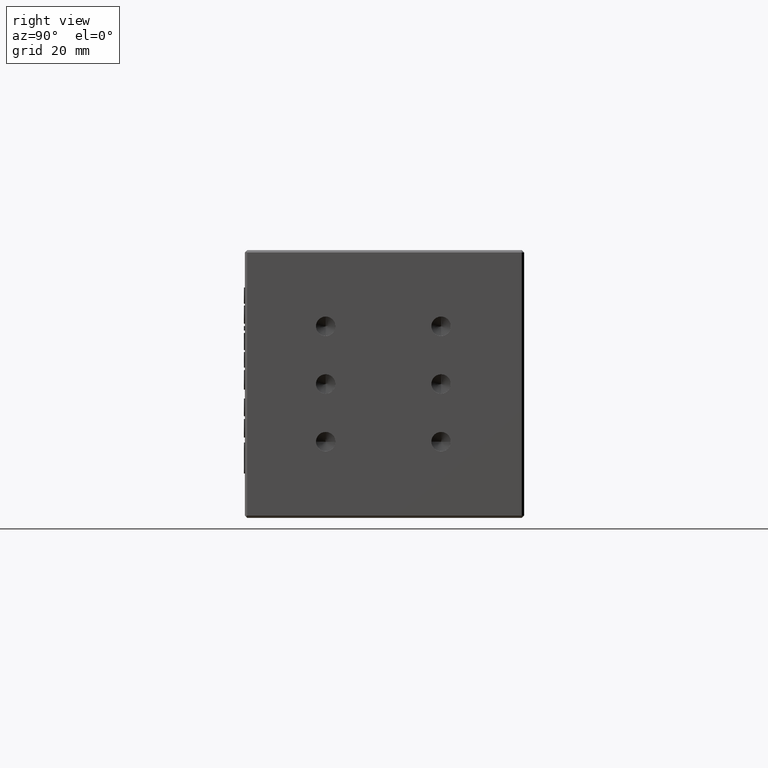
[diagram: clean part render]
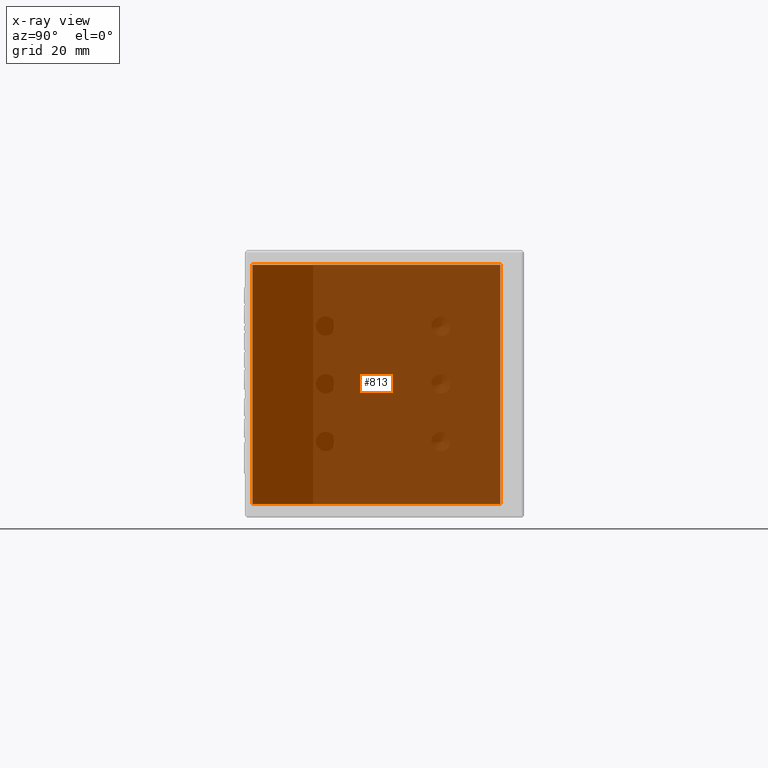
[diagram: x-ray — body ghosted, one internal face saturated and labeled with its STEP entity id]
A machine part, right view, then the same camera in x-ray: the body is ghosted and one INTERNAL B-rep face — a face not visible from any outside direction — is saturated and labeled: STEP entity #813.
In plain terms, the highlighted planar face has unit normal (0.7071, 0.7071, -0).
Its self-contained STEP definition (entity closure, byte-faithful):
#813 = ADVANCED_FACE ( 'NONE', ( #54067 ), #32954, .T. ) ;
#1885 = EDGE_CURVE ( 'NONE', #33702, #27958, #13919, .T. ) ;
#4095 = DIRECTION ( 'NONE',  ( 0.7071067811865451300, -0.7071067811865500200, -7.850462293418873400E-017 ) ) ;
#4324 = CARTESIAN_POINT ( 'NONE',  ( 0.5556930909997884700, 20.74306652683066000, 54.80000000000956100 ) ) ;
#7427 = LINE ( 'NONE', #4324, #48100 ) ;
#8691 = CARTESIAN_POINT ( 'NONE',  ( -26.31436459408893200, 47.61312421191956200, 28.90000000000955200 ) ) ;
#9241 = VECTOR ( 'NONE', #35173, 1000.000000000000000 ) ;
#9792 = VERTEX_POINT ( 'NONE', #62396 ) ;
#10686 = ORIENTED_EDGE ( 'NONE', *, *, #1885, .T. ) ;
#13919 = LINE ( 'NONE', #48567, #42223 ) ;
#19178 = DIRECTION ( 'NONE',  ( -0.7071067811865451300, 0.7071067811865500200, 7.850462293418873400E-017 ) ) ;
#19415 = AXIS2_PLACEMENT_3D ( 'NONE', #54229, #22429, #59562 ) ;
#19979 = LINE ( 'NONE', #45228, #48244 ) ;
#22429 = DIRECTION ( 'NONE',  ( 0.7071067811865500200, 0.7071067811865451300, -6.162975822039154700E-033 ) ) ;
#27958 = VERTEX_POINT ( 'NONE', #61572 ) ;
#30533 = VERTEX_POINT ( 'NONE', #64978 ) ;
#32954 = PLANE ( 'NONE',  #19415 ) ;
#33702 = VERTEX_POINT ( 'NONE', #59318 ) ;
#35173 = DIRECTION ( 'NONE',  ( 5.551115123125762400E-017, -5.551115123125800000E-017, 1.000000000000000000 ) ) ;
#38982 = EDGE_CURVE ( 'NONE', #9792, #33702, #7427, .T. ) ;
#42223 = VECTOR ( 'NONE', #58990, 1000.000000000000000 ) ;
#43295 = ORIENTED_EDGE ( 'NONE', *, *, #60387, .T. ) ;
#45228 = CARTESIAN_POINT ( 'NONE',  ( 0.5556930909997855900, 20.74306652683066300, 3.000000000009550600 ) ) ;
#48100 = VECTOR ( 'NONE', #4095, 1000.000000000000100 ) ;
#48244 = VECTOR ( 'NONE', #19178, 1000.000000000000100 ) ;
#48567 = CARTESIAN_POINT ( 'NONE',  ( 27.42575077608849900, -6.126991158258234400, 28.90000000000954800 ) ) ;
#54067 = FACE_OUTER_BOUND ( 'NONE', #63006, .T. ) ;
#54229 = CARTESIAN_POINT ( 'NONE',  ( 0.5556930909997870300, 20.74306652683066000, 28.90000000000954800 ) ) ;
#56774 = EDGE_CURVE ( 'NONE', #27958, #30533, #19979, .T. ) ;
#58990 = DIRECTION ( 'NONE',  ( -5.551115123125762400E-017, 5.551115123125800000E-017, -1.000000000000000000 ) ) ;
#59318 = CARTESIAN_POINT ( 'NONE',  ( 27.42575077608849900, -6.126991158258234400, 54.80000000000956100 ) ) ;
#59562 = DIRECTION ( 'NONE',  ( 0.7071067811865451300, -0.7071067811865500200, -7.850462293418873400E-017 ) ) ;
#59879 = LINE ( 'NONE', #8691, #9241 ) ;
#60387 = EDGE_CURVE ( 'NONE', #30533, #9792, #59879, .T. ) ;
#61572 = CARTESIAN_POINT ( 'NONE',  ( 27.42575077608849900, -6.126991158258230800, 3.000000000009547000 ) ) ;
#62396 = CARTESIAN_POINT ( 'NONE',  ( -26.31436459408893200, 47.61312421191956200, 54.80000000000956800 ) ) ;
#62705 = ORIENTED_EDGE ( 'NONE', *, *, #56774, .T. ) ;
#63006 = EDGE_LOOP ( 'NONE', ( #10686, #62705, #43295, #63402 ) ) ;
#63402 = ORIENTED_EDGE ( 'NONE', *, *, #38982, .T. ) ;
#64978 = CARTESIAN_POINT ( 'NONE',  ( -26.31436459408893200, 47.61312421191956900, 3.000000000009554100 ) ) ;